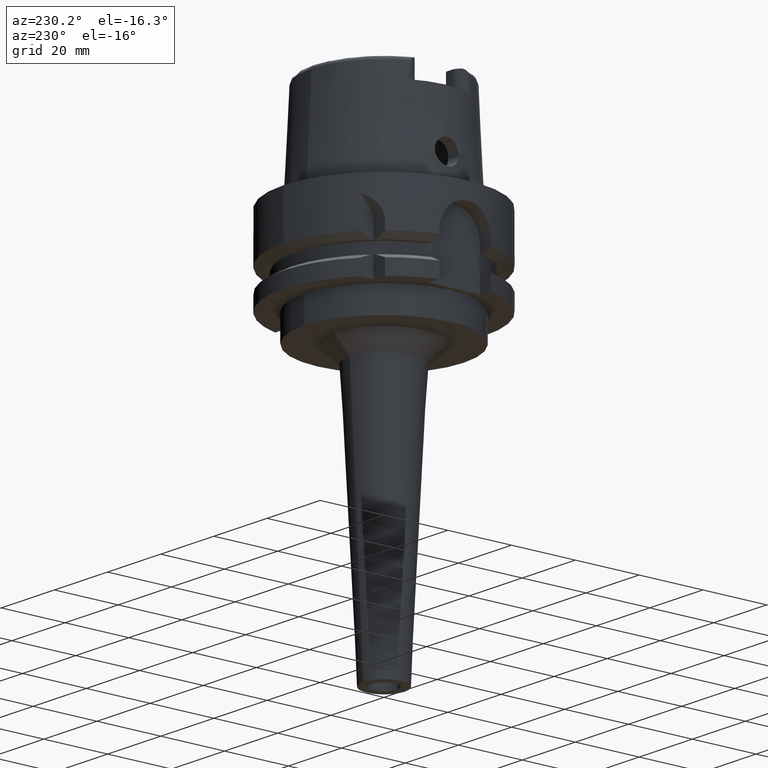
[diagram: clean part render]
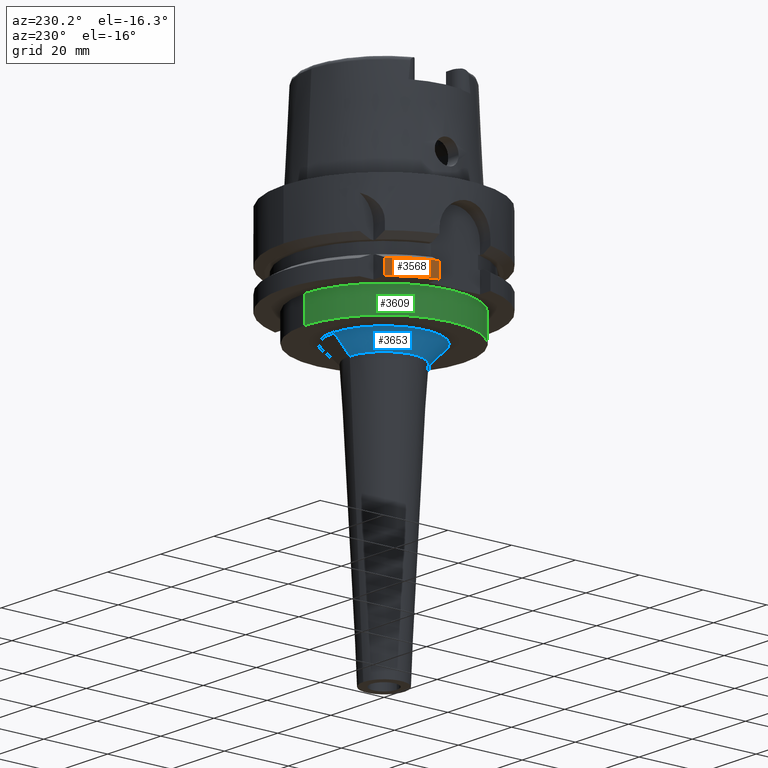
[diagram: same view with three faces highlighted in distinct colors, each labeled with its STEP entity id]
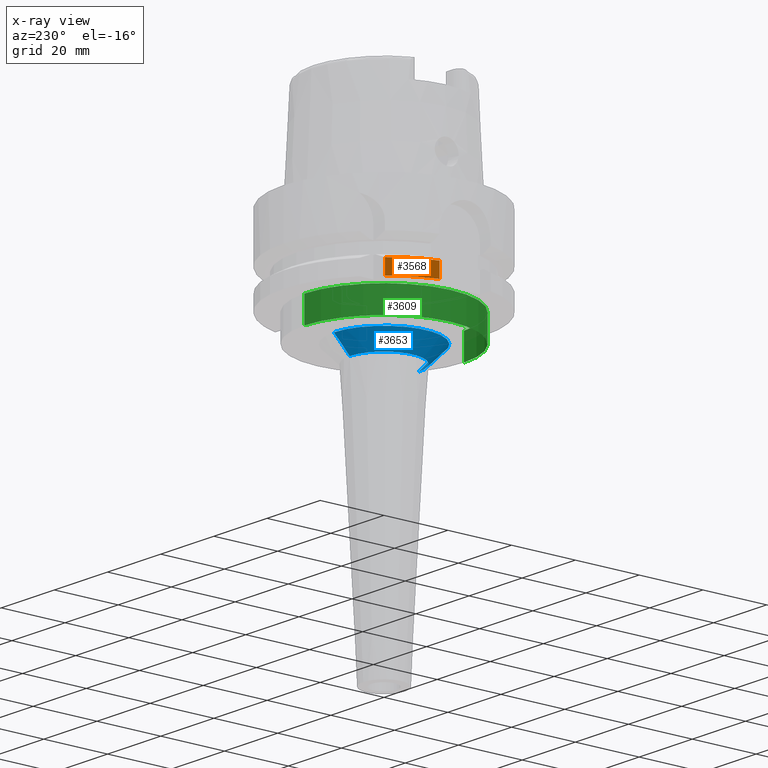
[diagram: x-ray of the same camera — body ghosted, the three highlighted faces saturated]
A machine part, auxiliary view with three faces highlighted in distinct colors.
The next image is the same camera in x-ray (body ghosted, the three faces saturated) — at least one of them is partly hidden behind the body in this view.
Their STEP definitions:

[orange] entity #3568 — the highlighted cylindrical surface (partial cylindrical patch) has radius 31.5 mm, axis along (0, 0, 1).
#977=CARTESIAN_POINT('',(0.E0,0.E0,-2.6E1));
#978=DIRECTION('',(0.E0,0.E0,1.E0));
#979=DIRECTION('',(-7.725773665802E-1,6.349206349206E-1,0.E0));
#980=AXIS2_PLACEMENT_3D('',#977,#978,#979);
#1567=DIRECTION('',(1.607973029405E-6,1.956594511683E-6,9.999999999968E-1));
#1568=VECTOR('',#1567,4.622468514515E0);
#1569=CARTESIAN_POINT('',(-2.433618704728E1,2.E1,-2.6E1));
#1570=LINE('',#1569,#1568);
#1574=DIRECTION('',(5.649069217593E-9,2.151360384881E-8,-1.E0));
#1575=VECTOR('',#1574,4.622501828027E0);
#1576=CARTESIAN_POINT('',(-3.046719549928E1,7.999999900554E0,
-2.137749817197E1));
#1577=LINE('',#1576,#1575);
#1605=CARTESIAN_POINT('',(0.E0,0.E0,-2.137749907476E1));
#1606=DIRECTION('',(0.E0,0.E0,-1.E0));
#1607=DIRECTION('',(-9.672125547036E-1,2.539682539683E-1,0.E0));
#1608=AXIS2_PLACEMENT_3D('',#1605,#1606,#1607);
#2391=CARTESIAN_POINT('',(-2.433618704728E1,2.E1,-2.6E1));
#2392=VERTEX_POINT('',#2391);
#2393=CARTESIAN_POINT('',(-3.046719547316E1,8.E0,-2.6E1));
#2394=VERTEX_POINT('',#2393);
#2437=CARTESIAN_POINT('',(-2.433617961447E1,2.000000904430E1,
-2.137753148550E1));
#2438=VERTEX_POINT('',#2437);
#2439=CARTESIAN_POINT('',(-3.046719547317E1,8.000000000001E0,
-2.137749907476E1));
#2440=VERTEX_POINT('',#2439);
#3555=CARTESIAN_POINT('',(0.E0,0.E0,-1.276E2));
#3556=DIRECTION('',(0.E0,0.E0,1.E0));
#3557=DIRECTION('',(0.E0,1.E0,0.E0));
#3558=AXIS2_PLACEMENT_3D('',#3555,#3556,#3557);
#3559=CYLINDRICAL_SURFACE('',#3558,3.15E1);
#3561=ORIENTED_EDGE('',*,*,#3560,.T.);
#3563=ORIENTED_EDGE('',*,*,#3562,.F.);
#3564=ORIENTED_EDGE('',*,*,#3546,.T.);
#3565=ORIENTED_EDGE('',*,*,#3157,.F.);
#3566=EDGE_LOOP('',(#3561,#3563,#3564,#3565));
#3567=FACE_OUTER_BOUND('',#3566,.F.);
#981=CIRCLE('',#980,3.15E1);
#1609=CIRCLE('',#1608,3.15E1);
#3157=EDGE_CURVE('',#2392,#2394,#981,.T.);
#3546=EDGE_CURVE('',#2440,#2394,#1577,.T.);
#3560=EDGE_CURVE('',#2392,#2438,#1570,.T.);
#3562=EDGE_CURVE('',#2440,#2438,#1609,.T.);
#3568=ADVANCED_FACE('',(#3567),#3559,.T.);

[blue] entity #3653 — the highlighted conical surface has half-angle 45 deg.
#1643=CARTESIAN_POINT('',(0.E0,0.E0,-3.4E1));
#1644=DIRECTION('',(0.E0,0.E0,-1.E0));
#1645=DIRECTION('',(0.E0,-1.E0,0.E0));
#1646=AXIS2_PLACEMENT_3D('',#1643,#1644,#1645);
#1659=DIRECTION('',(0.E0,7.071067811867E-1,-7.071067811864E-1));
#1660=VECTOR('',#1659,7.071067811867E0);
#1661=CARTESIAN_POINT('',(0.E0,-1.574503012193E1,-3.4E1));
#1662=LINE('',#1661,#1660);
#1666=CARTESIAN_POINT('',(0.E0,0.E0,-3.9E1));
#1667=DIRECTION('',(0.E0,0.E0,-1.E0));
#1668=DIRECTION('',(0.E0,-1.E0,0.E0));
#1669=AXIS2_PLACEMENT_3D('',#1666,#1667,#1668);
#1674=DIRECTION('',(0.E0,-7.071067811867E-1,-7.071067811864E-1));
#1675=VECTOR('',#1674,7.071067811867E0);
#1676=CARTESIAN_POINT('',(0.E0,1.574503012193E1,-3.4E1));
#1677=LINE('',#1676,#1675);
#2371=CARTESIAN_POINT('',(0.E0,1.074503012193E1,-3.9E1));
#2372=VERTEX_POINT('',#2371);
#2373=CARTESIAN_POINT('',(0.E0,-1.074503012193E1,-3.9E1));
#2374=VERTEX_POINT('',#2373);
#2375=CARTESIAN_POINT('',(0.E0,1.574503012193E1,-3.4E1));
#2376=VERTEX_POINT('',#2375);
#2377=CARTESIAN_POINT('',(0.E0,-1.574503012193E1,-3.4E1));
#2378=VERTEX_POINT('',#2377);
#3639=CARTESIAN_POINT('',(0.E0,0.E0,-3.65E1));
#3640=DIRECTION('',(0.E0,0.E0,1.E0));
#3641=DIRECTION('',(0.E0,1.E0,0.E0));
#3642=AXIS2_PLACEMENT_3D('',#3639,#3640,#3641);
#3643=CONICAL_SURFACE('',#3642,1.324503012193E1,4.5E1);
#3645=ORIENTED_EDGE('',*,*,#3644,.F.);
#3646=ORIENTED_EDGE('',*,*,#3632,.F.);
#3648=ORIENTED_EDGE('',*,*,#3647,.T.);
#3650=ORIENTED_EDGE('',*,*,#3649,.T.);
#3651=EDGE_LOOP('',(#3645,#3646,#3648,#3650));
#3652=FACE_OUTER_BOUND('',#3651,.F.);
#1647=CIRCLE('',#1646,1.574503012193E1);
#1670=CIRCLE('',#1669,1.074503012193E1);
#3632=EDGE_CURVE('',#2378,#2376,#1647,.T.);
#3644=EDGE_CURVE('',#2376,#2372,#1677,.T.);
#3647=EDGE_CURVE('',#2378,#2374,#1662,.T.);
#3649=EDGE_CURVE('',#2374,#2372,#1670,.T.);
#3653=ADVANCED_FACE('',(#3652),#3643,.T.);

[green] entity #3609 — the highlighted cylindrical surface (partial cylindrical patch) has radius 25 mm, axis along (0, 0, 1).
#1038=CARTESIAN_POINT('',(0.E0,0.E0,-2.6E1));
#1039=DIRECTION('',(0.E0,0.E0,-1.E0));
#1040=DIRECTION('',(0.E0,-1.E0,0.E0));
#1041=AXIS2_PLACEMENT_3D('',#1038,#1039,#1040);
#1613=DIRECTION('',(0.E0,0.E0,-1.E0));
#1614=VECTOR('',#1613,8.E0);
#1615=CARTESIAN_POINT('',(0.E0,-2.5E1,-2.6E1));
#1616=LINE('',#1615,#1614);
#1620=DIRECTION('',(0.E0,0.E0,-1.E0));
#1621=VECTOR('',#1620,8.E0);
#1622=CARTESIAN_POINT('',(0.E0,2.5E1,-2.6E1));
#1623=LINE('',#1622,#1621);
#1635=CARTESIAN_POINT('',(0.E0,0.E0,-3.4E1));
#1636=DIRECTION('',(0.E0,0.E0,1.E0));
#1637=DIRECTION('',(0.E0,1.E0,0.E0));
#1638=AXIS2_PLACEMENT_3D('',#1635,#1636,#1637);
#2379=CARTESIAN_POINT('',(0.E0,-2.5E1,-3.4E1));
#2380=CARTESIAN_POINT('',(0.E0,2.5E1,-3.4E1));
#2381=VERTEX_POINT('',#2379);
#2382=VERTEX_POINT('',#2380);
#2383=CARTESIAN_POINT('',(0.E0,2.5E1,-2.6E1));
#2384=VERTEX_POINT('',#2383);
#2385=CARTESIAN_POINT('',(0.E0,-2.5E1,-2.6E1));
#2386=VERTEX_POINT('',#2385);
#3595=CARTESIAN_POINT('',(0.E0,0.E0,-1.276E2));
#3596=DIRECTION('',(0.E0,0.E0,1.E0));
#3597=DIRECTION('',(0.E0,1.E0,0.E0));
#3598=AXIS2_PLACEMENT_3D('',#3595,#3596,#3597);
#3599=CYLINDRICAL_SURFACE('',#3598,2.5E1);
#3601=ORIENTED_EDGE('',*,*,#3600,.F.);
#3602=ORIENTED_EDGE('',*,*,#3180,.F.);
#3604=ORIENTED_EDGE('',*,*,#3603,.T.);
#3606=ORIENTED_EDGE('',*,*,#3605,.F.);
#3607=EDGE_LOOP('',(#3601,#3602,#3604,#3606));
#3608=FACE_OUTER_BOUND('',#3607,.F.);
#1042=CIRCLE('',#1041,2.5E1);
#1639=CIRCLE('',#1638,2.5E1);
#3180=EDGE_CURVE('',#2386,#2384,#1042,.T.);
#3600=EDGE_CURVE('',#2384,#2382,#1623,.T.);
#3603=EDGE_CURVE('',#2386,#2381,#1616,.T.);
#3605=EDGE_CURVE('',#2382,#2381,#1639,.T.);
#3609=ADVANCED_FACE('',(#3608),#3599,.T.);